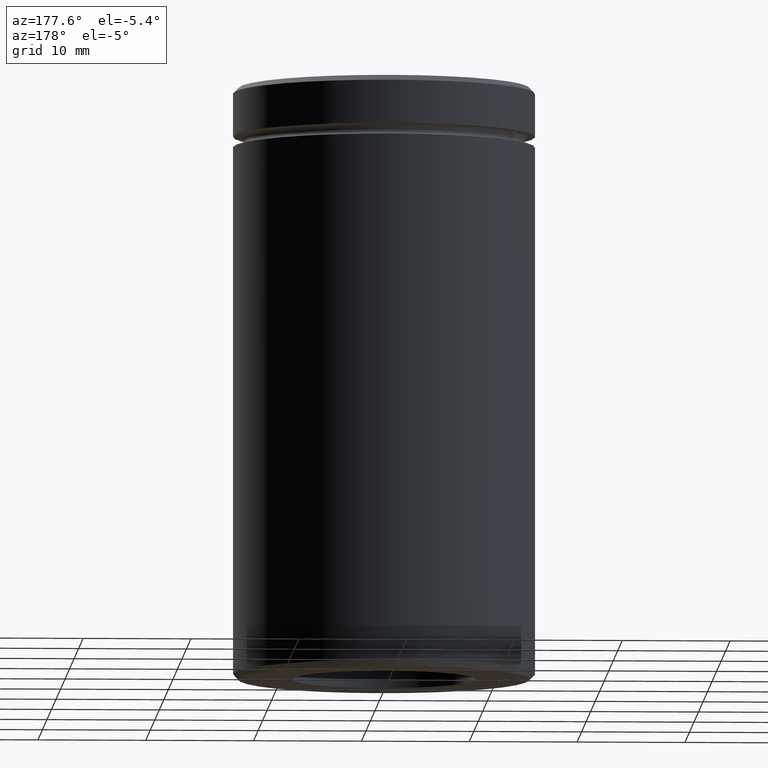
[diagram: clean part render]
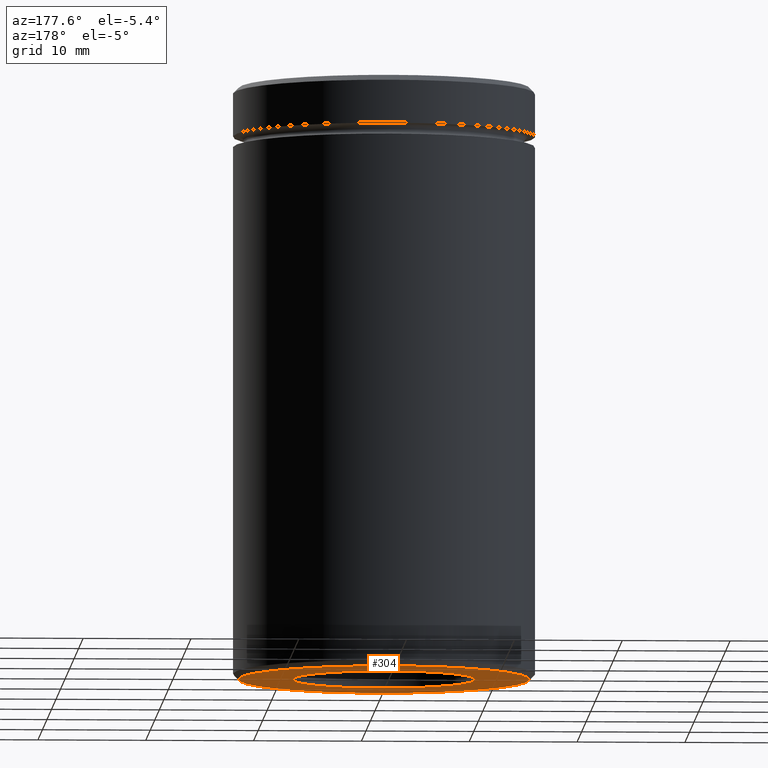
[diagram: same view with one face highlighted and labeled with its STEP entity id]
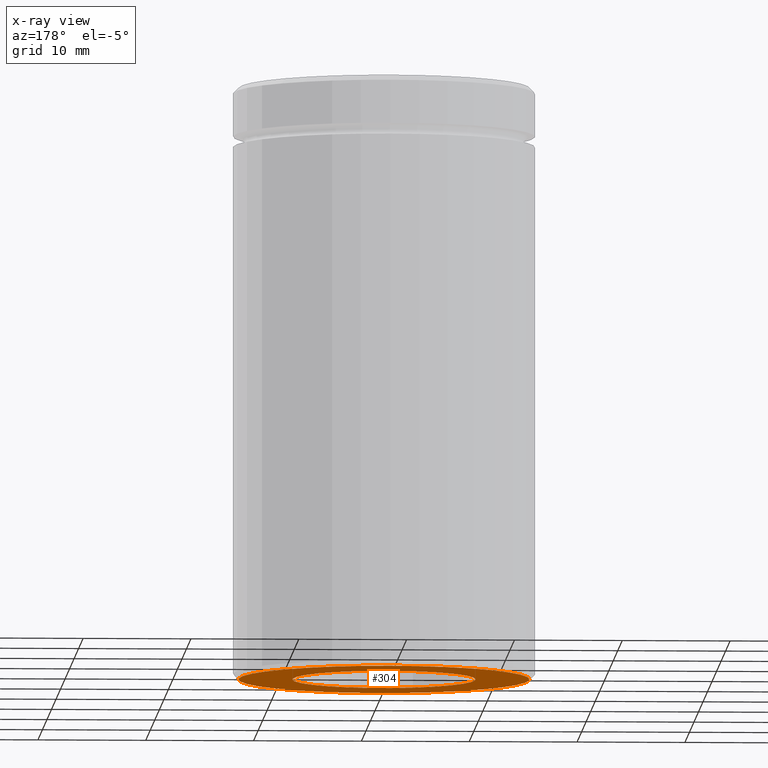
[diagram: x-ray of the same camera — body ghosted, the highlighted face saturated]
A machine part, auxiliary view. The second image highlights one B-rep face of the part: STEP entity #304.
The next image is the same camera in x-ray: the body ghosted, the highlighted face saturated — about 0% of this face is hidden behind the body in this view.
In plain terms, the highlighted planar face has unit normal (0, 0, -1).
Its self-contained STEP definition (entity closure, byte-faithful):
#36 = PLANE ( 'NONE',  #152 ) ;
#51 = EDGE_LOOP ( 'NONE', ( #557, #363 ) ) ;
#54 = CARTESIAN_POINT ( 'NONE',  ( 8.500000000000000000, 1.040949779275250140E-15, -55.00000000000000000 ) ) ;
#68 = DIRECTION ( 'NONE',  ( 0.000000000000000000, 0.000000000000000000, -1.000000000000000000 ) ) ;
#89 = AXIS2_PLACEMENT_3D ( 'NONE', #547, #201, #376 ) ;
#115 = DIRECTION ( 'NONE',  ( -1.000000000000000000, 0.000000000000000000, 0.000000000000000000 ) ) ;
#122 = CARTESIAN_POINT ( 'NONE',  ( 0.000000000000000000, 0.000000000000000000, -55.00000000000000000 ) ) ;
#136 = DIRECTION ( 'NONE',  ( 0.000000000000000000, 0.000000000000000000, -1.000000000000000000 ) ) ;
#138 = VERTEX_POINT ( 'NONE', #54 ) ;
#146 = AXIS2_PLACEMENT_3D ( 'NONE', #326, #68, #214 ) ;
#152 = AXIS2_PLACEMENT_3D ( 'NONE', #520, #136, #212 ) ;
#168 = CARTESIAN_POINT ( 'NONE',  ( 13.49999999999999822, 0.000000000000000000, -55.00000000000000000 ) ) ;
#174 = VERTEX_POINT ( 'NONE', #410 ) ;
#181 = ORIENTED_EDGE ( 'NONE', *, *, #340, .F. ) ;
#196 = DIRECTION ( 'NONE',  ( 0.000000000000000000, 0.000000000000000000, -1.000000000000000000 ) ) ;
#201 = DIRECTION ( 'NONE',  ( 0.000000000000000000, 0.000000000000000000, -1.000000000000000000 ) ) ;
#204 = CIRCLE ( 'NONE', #275, 8.500000000000000000 ) ;
#212 = DIRECTION ( 'NONE',  ( -1.000000000000000000, 0.000000000000000000, -0.000000000000000000 ) ) ;
#214 = DIRECTION ( 'NONE',  ( -1.000000000000000000, 0.000000000000000000, 0.000000000000000000 ) ) ;
#246 = DIRECTION ( 'NONE',  ( -1.000000000000000000, 0.000000000000000000, 0.000000000000000000 ) ) ;
#254 = CIRCLE ( 'NONE', #568, 13.49999999999999822 ) ;
#255 = CARTESIAN_POINT ( 'NONE',  ( -8.500000000000000000, 0.000000000000000000, -55.00000000000000000 ) ) ;
#275 = AXIS2_PLACEMENT_3D ( 'NONE', #122, #196, #246 ) ;
#278 = CARTESIAN_POINT ( 'NONE',  ( 0.000000000000000000, 0.000000000000000000, -55.00000000000000000 ) ) ;
#294 = FACE_OUTER_BOUND ( 'NONE', #51, .T. ) ;
#304 = ADVANCED_FACE ( 'NONE', ( #294, #498 ), #36, .T. ) ;
#326 = CARTESIAN_POINT ( 'NONE',  ( 0.000000000000000000, 0.000000000000000000, -55.00000000000000000 ) ) ;
#340 = EDGE_CURVE ( 'NONE', #439, #138, #417, .T. ) ;
#345 = ORIENTED_EDGE ( 'NONE', *, *, #465, .F. ) ;
#360 = CIRCLE ( 'NONE', #146, 13.49999999999999822 ) ;
#363 = ORIENTED_EDGE ( 'NONE', *, *, #491, .T. ) ;
#369 = DIRECTION ( 'NONE',  ( 0.000000000000000000, 0.000000000000000000, -1.000000000000000000 ) ) ;
#376 = DIRECTION ( 'NONE',  ( -1.000000000000000000, 0.000000000000000000, 0.000000000000000000 ) ) ;
#377 = EDGE_CURVE ( 'NONE', #488, #174, #254, .T. ) ;
#410 = CARTESIAN_POINT ( 'NONE',  ( -13.49999999999999822, 1.683889348827610654E-15, -55.00000000000000000 ) ) ;
#417 = CIRCLE ( 'NONE', #89, 8.500000000000000000 ) ;
#428 = EDGE_LOOP ( 'NONE', ( #181, #345 ) ) ;
#439 = VERTEX_POINT ( 'NONE', #255 ) ;
#465 = EDGE_CURVE ( 'NONE', #138, #439, #204, .T. ) ;
#488 = VERTEX_POINT ( 'NONE', #168 ) ;
#491 = EDGE_CURVE ( 'NONE', #174, #488, #360, .T. ) ;
#498 = FACE_BOUND ( 'NONE', #428, .T. ) ;
#520 = CARTESIAN_POINT ( 'NONE',  ( 0.000000000000000000, 14.00000000000000000, -55.00000000000000000 ) ) ;
#547 = CARTESIAN_POINT ( 'NONE',  ( 0.000000000000000000, 0.000000000000000000, -55.00000000000000000 ) ) ;
#557 = ORIENTED_EDGE ( 'NONE', *, *, #377, .T. ) ;
#568 = AXIS2_PLACEMENT_3D ( 'NONE', #278, #369, #115 ) ;